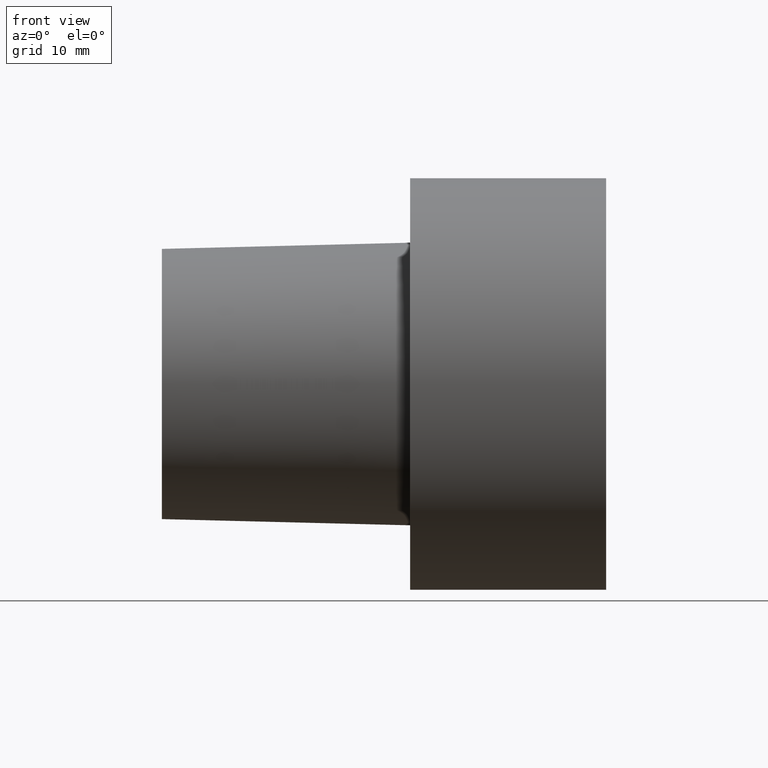
[diagram: clean part render]
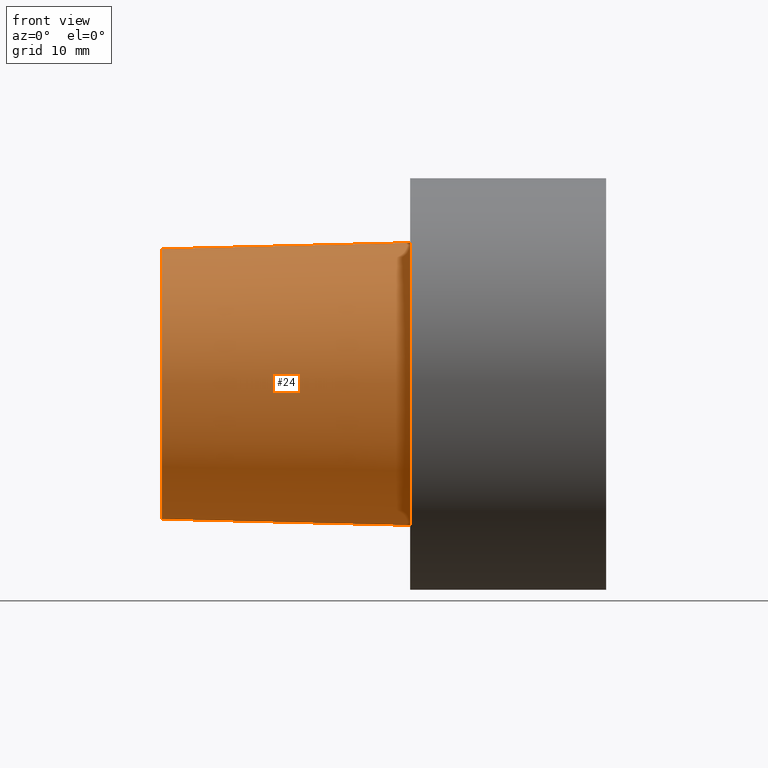
[diagram: same view with one face highlighted and labeled with its STEP entity id]
A machine part, front view. The second image highlights one B-rep face of the part: STEP entity #24.
In plain terms, the highlighted conical surface has half-angle 1.432 deg.
Its self-contained STEP definition (entity closure, byte-faithful):
#4 = DIRECTION ( 'NONE',  ( 1.000000000000000000, 0.000000000000000000, 0.000000000000000000 ) ) ;
#5 = DIRECTION ( 'NONE',  ( -1.000000000000000000, 0.000000000000000000, 0.000000000000000000 ) ) ;
#21 = VERTEX_POINT ( 'NONE', #206 ) ;
#24 = ADVANCED_FACE ( 'NONE', ( #115 ), #39, .T. ) ;
#30 = VERTEX_POINT ( 'NONE', #245 ) ;
#37 = CARTESIAN_POINT ( 'NONE',  ( 0.000000000000000000, 0.000000000000000000, -21.63061196907898065 ) ) ;
#39 = CONICAL_SURFACE ( 'NONE', #46, 21.63061196907898065, 0.02499698951949481940 ) ;
#46 = AXIS2_PLACEMENT_3D ( 'NONE', #116, #4, #247 ) ;
#47 = ORIENTED_EDGE ( 'NONE', *, *, #202, .T. ) ;
#52 = DIRECTION ( 'NONE',  ( 0.9996875915253454759, 0.000000000000000000, -0.02499438637482059161 ) ) ;
#54 = DIRECTION ( 'NONE',  ( 0.9996875915253454759, 3.060929527057623083E-18, 0.02499438637482059161 ) ) ;
#71 = ORIENTED_EDGE ( 'NONE', *, *, #101, .F. ) ;
#75 = LINE ( 'NONE', #37, #227 ) ;
#83 = AXIS2_PLACEMENT_3D ( 'NONE', #193, #5, #89 ) ;
#89 = DIRECTION ( 'NONE',  ( 0.000000000000000000, 0.000000000000000000, 1.000000000000000000 ) ) ;
#90 = EDGE_LOOP ( 'NONE', ( #148, #71, #47, #208 ) ) ;
#95 = LINE ( 'NONE', #120, #169 ) ;
#98 = CIRCLE ( 'NONE', #83, 20.68052847366897140 ) ;
#101 = EDGE_CURVE ( 'NONE', #170, #138, #98, .T. ) ;
#115 = FACE_OUTER_BOUND ( 'NONE', #90, .T. ) ;
#116 = CARTESIAN_POINT ( 'NONE',  ( 0.000000000000000000, 0.000000000000000000, 0.000000000000000000 ) ) ;
#118 = DIRECTION ( 'NONE',  ( 0.000000000000000000, 0.000000000000000000, 1.000000000000000000 ) ) ;
#120 = CARTESIAN_POINT ( 'NONE',  ( 0.000000000000000000, 2.648985971153096932E-15, 21.63061196907898065 ) ) ;
#138 = VERTEX_POINT ( 'NONE', #198 ) ;
#148 = ORIENTED_EDGE ( 'NONE', *, *, #154, .F. ) ;
#154 = EDGE_CURVE ( 'NONE', #138, #30, #95, .T. ) ;
#169 = VECTOR ( 'NONE', #54, 1000.000000000000114 ) ;
#170 = VERTEX_POINT ( 'NONE', #234 ) ;
#174 = AXIS2_PLACEMENT_3D ( 'NONE', #253, #195, #118 ) ;
#189 = CIRCLE ( 'NONE', #174, 21.63061196907898065 ) ;
#193 = CARTESIAN_POINT ( 'NONE',  ( -37.99999996124000035, 0.000000000000000000, 0.000000000000000000 ) ) ;
#195 = DIRECTION ( 'NONE',  ( -1.000000000000000000, 0.000000000000000000, 0.000000000000000000 ) ) ;
#198 = CARTESIAN_POINT ( 'NONE',  ( -37.99999996124000035, 2.590810135574270981E-15, 20.68052847366897140 ) ) ;
#202 = EDGE_CURVE ( 'NONE', #170, #21, #75, .T. ) ;
#206 = CARTESIAN_POINT ( 'NONE',  ( 0.000000000000000000, 0.000000000000000000, -21.63061196907898065 ) ) ;
#208 = ORIENTED_EDGE ( 'NONE', *, *, #244, .T. ) ;
#227 = VECTOR ( 'NONE', #52, 1000.000000000000114 ) ;
#234 = CARTESIAN_POINT ( 'NONE',  ( -37.99999996124000035, 0.000000000000000000, -20.68052847366897140 ) ) ;
#244 = EDGE_CURVE ( 'NONE', #21, #30, #189, .T. ) ;
#245 = CARTESIAN_POINT ( 'NONE',  ( 0.000000000000000000, 2.648985971153096932E-15, 21.63061196907898065 ) ) ;
#247 = DIRECTION ( 'NONE',  ( 0.000000000000000000, 0.000000000000000000, -1.000000000000000000 ) ) ;
#253 = CARTESIAN_POINT ( 'NONE',  ( 0.000000000000000000, 0.000000000000000000, 0.000000000000000000 ) ) ;